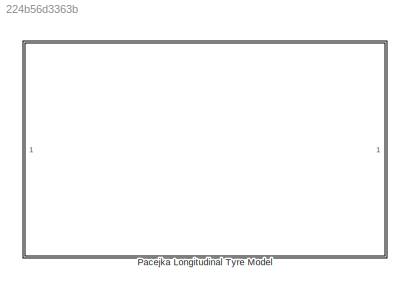
MODEL slx_224b56d3363b
KIND model
CONFIG AbsTol = auto
CONFIG EnableMultiTasking = off
CONFIG FixedStep = auto
CONFIG MaxStep = auto
CONFIG MinStep = auto
CONFIG RelTol = 1e-3
CONFIG SampleTimeConstraint = Unconstrained
CONFIG SolverName = VariableStepAuto
CONFIG StartTime = 0.0
CONFIG StopTime = 10.0
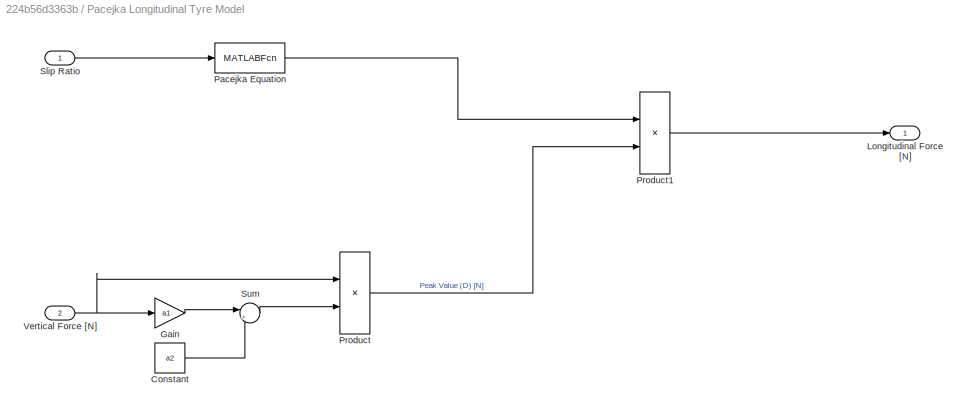
BLOCK [SubSystem] Pacejka Longitudinal Tyre Model
BLOCK [Constant] Pacejka Longitudinal Tyre Model/Constant
  Value = a2
BLOCK [Gain] Pacejka Longitudinal Tyre Model/Gain
  Gain = a1
BLOCK [Outport] Pacejka Longitudinal Tyre Model/Longitudinal Force [N]
BLOCK [MATLABFcn] Pacejka Longitudinal Tyre Model/Pacejka Equation
  MATLABFcn = sin(C*atan(B*u-E*(B*u-atan(B*u))))
BLOCK [Product] Pacejka Longitudinal Tyre Model/Product
BLOCK [Product] Pacejka Longitudinal Tyre Model/Product1
BLOCK [Inport] Pacejka Longitudinal Tyre Model/Slip Ratio
BLOCK [Sum] Pacejka Longitudinal Tyre Model/Sum
  Inputs = |++
BLOCK [Inport] Pacejka Longitudinal Tyre Model/Vertical Force [N]
  Port = 2
LINE Pacejka Longitudinal Tyre Model/Constant:1 -> Pacejka Longitudinal Tyre Model/Sum:2
LINE Pacejka Longitudinal Tyre Model/Gain:1 -> Pacejka Longitudinal Tyre Model/Sum:1
LINE Pacejka Longitudinal Tyre Model/Pacejka Equation:1 -> Pacejka Longitudinal Tyre Model/Product1:1
LINE Pacejka Longitudinal Tyre Model/Product1:1 -> Pacejka Longitudinal Tyre Model/Longitudinal Force [N]:1
LINE Pacejka Longitudinal Tyre Model/Product:1 -> Pacejka Longitudinal Tyre Model/Product1:2
LINE Pacejka Longitudinal Tyre Model/Slip Ratio:1 -> Pacejka Longitudinal Tyre Model/Pacejka Equation:1
LINE Pacejka Longitudinal Tyre Model/Sum:1 -> Pacejka Longitudinal Tyre Model/Product:2
NET Pacejka Longitudinal Tyre Model/Vertical Force [N]:1 -> Pacejka Longitudinal Tyre Model/Gain:1, Pacejka Longitudinal Tyre Model/Product:1
note: NET lines group one-source signal fan-out (src -> all destinations, sorted); 1:1 wires keep LINE
